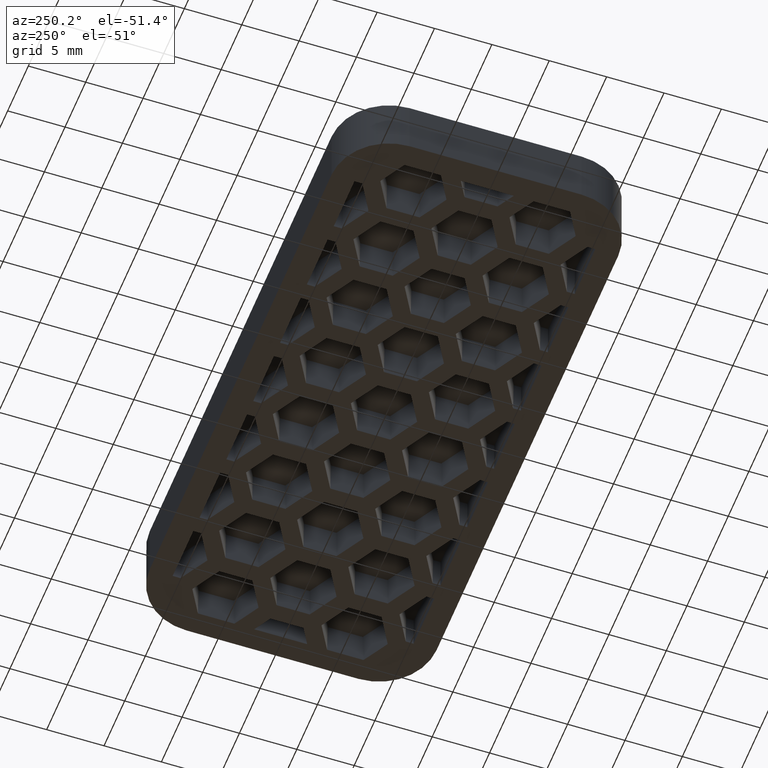
[diagram: clean part render]
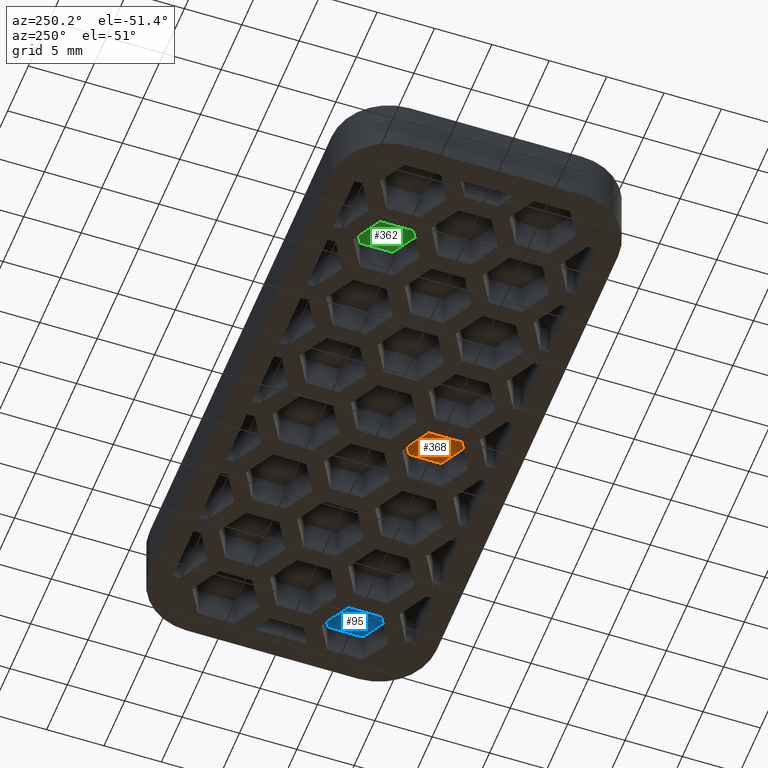
[diagram: same view with three faces highlighted in distinct colors, each labeled with its STEP entity id]
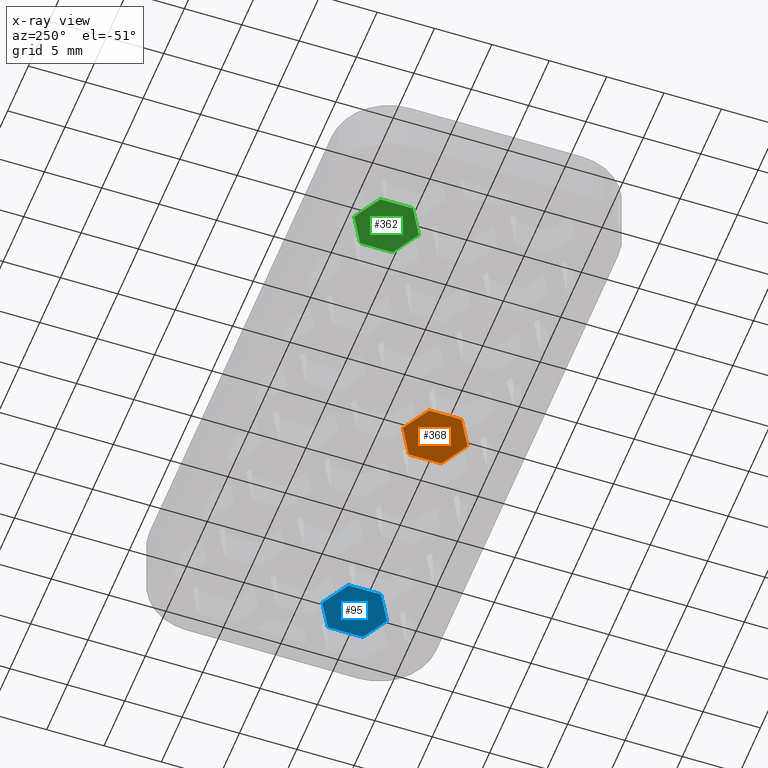
[diagram: x-ray of the same camera — body ghosted, the three highlighted faces saturated]
A machine part, auxiliary view with three faces highlighted in distinct colors.
The next image is the same camera in x-ray (body ghosted, the three faces saturated) — at least one of them is partly hidden behind the body in this view.
Their STEP definitions:

[orange] entity #368 — the highlighted planar face has unit normal (0, -0, -1).
#368 = ADVANCED_FACE( '', ( #1012 ), #1013, .T. );
#1012 = FACE_OUTER_BOUND( '', #1664, .T. );
#1013 = PLANE( '', #1665 );
#1664 = EDGE_LOOP( '', ( #4027, #4028, #4029, #4030, #4031, #4032 ) );
#1665 = AXIS2_PLACEMENT_3D( '', #4033, #4034, #4035 );
#4027 = ORIENTED_EDGE( '', *, *, #4536, .T. );
#4028 = ORIENTED_EDGE( '', *, *, #4524, .T. );
#4029 = ORIENTED_EDGE( '', *, *, #4529, .T. );
#4030 = ORIENTED_EDGE( '', *, *, #4531, .T. );
#4031 = ORIENTED_EDGE( '', *, *, #4533, .T. );
#4032 = ORIENTED_EDGE( '', *, *, #4535, .T. );
#4033 = CARTESIAN_POINT( '', ( 39.5000000000000, -3.28575599888026E-015, 3.00000000000000 ) );
#4034 = DIRECTION( '', ( 0.000000000000000, -6.12303176911189E-017, -1.00000000000000 ) );
#4035 = DIRECTION( '', ( 0.000000000000000, -1.00000000000000, 6.12303176911189E-017 ) );
#4524 = EDGE_CURVE( '', #5625, #5627, #5629, .T. );
#4529 = EDGE_CURVE( '', #5627, #5633, #5635, .T. );
#4531 = EDGE_CURVE( '', #5633, #5636, #5638, .T. );
#4533 = EDGE_CURVE( '', #5636, #5639, #5641, .T. );
#4535 = EDGE_CURVE( '', #5639, #5642, #5644, .T. );
#4536 = EDGE_CURVE( '', #5642, #5625, #5645, .T. );
#5625 = VERTEX_POINT( '', #7293 );
#5627 = VERTEX_POINT( '', #7296 );
#5629 = LINE( '', #7299, #7300 );
#5633 = VERTEX_POINT( '', #7307 );
#5635 = LINE( '', #7310, #7311 );
#5636 = VERTEX_POINT( '', #7312 );
#5638 = LINE( '', #7315, #7316 );
#5639 = VERTEX_POINT( '', #7317 );
#5641 = LINE( '', #7320, #7321 );
#5642 = VERTEX_POINT( '', #7322 );
#5644 = LINE( '', #7325, #7326 );
#5645 = LINE( '', #7327, #7328 );
#7293 = CARTESIAN_POINT( '', ( 5.69763480521534, -4.21602251092988, 3.00000000000000 ) );
#7296 = CARTESIAN_POINT( '', ( 5.69763480521535, -7.04230773826783, 3.00000000000000 ) );
#7299 = CARTESIAN_POINT( '', ( 5.69763480521533, 10.5000000000000, 3.00000000000000 ) );
#7300 = VECTOR( '', #8592, 1000.00000000000 );
#7307 = CARTESIAN_POINT( '', ( 3.24999999999999, -8.45545035193680, 3.00000000000000 ) );
#7310 = CARTESIAN_POINT( '', ( -11.2295492275240, -16.8152219961922, 3.00000000000000 ) );
#7311 = VECTOR( '', #8597, 1000.00000000000 );
#7312 = CARTESIAN_POINT( '', ( 0.802365194784648, -7.04230773826783, 3.00000000000000 ) );
#7315 = CARTESIAN_POINT( '', ( -27.6454507724760, 9.38204646828704, 3.00000000000000 ) );
#7316 = VECTOR( '', #8599, 1000.00000000000 );
#7317 = CARTESIAN_POINT( '', ( 0.802365194784647, -4.21602251092988, 3.00000000000000 ) );
#7320 = CARTESIAN_POINT( '', ( 0.802365194784650, 10.5000000000000, 3.00000000000000 ) );
#7321 = VECTOR( '', #8601, 1000.00000000000 );
#7322 = CARTESIAN_POINT( '', ( 3.25000000000000, -2.80287989726090, 3.00000000000000 ) );
#7325 = CARTESIAN_POINT( '', ( -13.6771840327394, -12.5757941551853, 3.00000000000000 ) );
#7326 = VECTOR( '', #8603, 1000.00000000000 );
#7327 = CARTESIAN_POINT( '', ( -25.1978159672606, 13.6214743092940, 3.00000000000000 ) );
#7328 = VECTOR( '', #8604, 1000.00000000000 );
#8592 = DIRECTION( '', ( 7.21644966006352E-016, -1.00000000000000, 6.12303176911189E-017 ) );
#8597 = DIRECTION( '', ( -0.866025403784438, -0.500000000000000, 3.06151588455594E-017 ) );
#8599 = DIRECTION( '', ( -0.866025403784439, 0.500000000000000, -3.06151588455594E-017 ) );
#8601 = DIRECTION( '', ( 1.11022302462516E-016, 1.00000000000000, -6.12303176911189E-017 ) );
#8603 = DIRECTION( '', ( 0.866025403784439, 0.500000000000000, -3.06151588455594E-017 ) );
#8604 = DIRECTION( '', ( 0.866025403784439, -0.500000000000000, 3.06151588455594E-017 ) );

[blue] entity #95 — the highlighted planar face has unit normal (0, -0, -1).
#95 = ADVANCED_FACE( '', ( #464 ), #465, .T. );
#464 = FACE_OUTER_BOUND( '', #1116, .T. );
#465 = PLANE( '', #1117 );
#1116 = EDGE_LOOP( '', ( #2077, #2078, #2079, #2080, #2081, #2082 ) );
#1117 = AXIS2_PLACEMENT_3D( '', #2083, #2084, #2085 );
#2077 = ORIENTED_EDGE( '', *, *, #4402, .T. );
#2078 = ORIENTED_EDGE( '', *, *, #4403, .T. );
#2079 = ORIENTED_EDGE( '', *, *, #4404, .T. );
#2080 = ORIENTED_EDGE( '', *, *, #4405, .T. );
#2081 = ORIENTED_EDGE( '', *, *, #4406, .T. );
#2082 = ORIENTED_EDGE( '', *, *, #4407, .T. );
#2083 = CARTESIAN_POINT( '', ( 39.5000000000000, -3.28575599888026E-015, 3.00000000000000 ) );
#2084 = DIRECTION( '', ( 0.000000000000000, -6.12303176911189E-017, -1.00000000000000 ) );
#2085 = DIRECTION( '', ( 0.000000000000000, -1.00000000000000, 6.12303176911189E-017 ) );
#4402 = EDGE_CURVE( '', #5438, #5439, #5440, .T. );
#4403 = EDGE_CURVE( '', #5439, #5441, #5442, .T. );
#4404 = EDGE_CURVE( '', #5441, #5443, #5444, .T. );
#4405 = EDGE_CURVE( '', #5443, #5445, #5446, .T. );
#4406 = EDGE_CURVE( '', #5445, #5447, #5448, .T. );
#4407 = EDGE_CURVE( '', #5447, #5438, #5449, .T. );
#5438 = VERTEX_POINT( '', #6988 );
#5439 = VERTEX_POINT( '', #6989 );
#5440 = LINE( '', #6990, #6991 );
#5441 = VERTEX_POINT( '', #6992 );
#5442 = LINE( '', #6993, #6994 );
#5443 = VERTEX_POINT( '', #6995 );
#5444 = LINE( '', #6996, #6997 );
#5445 = VERTEX_POINT( '', #6998 );
#5446 = LINE( '', #6999, #7000 );
#5447 = VERTEX_POINT( '', #7001 );
#5448 = LINE( '', #7002, #7003 );
#5449 = LINE( '', #7004, #7005 );
#6988 = CARTESIAN_POINT( '', ( 22.7500000000000, -2.80287989726089, 3.00000000000000 ) );
#6989 = CARTESIAN_POINT( '', ( 25.0000000000000, -4.10191800293754, 3.00000000000000 ) );
#6990 = CARTESIAN_POINT( '', ( -20.3228159672606, 22.0652219961922, 3.00000000000000 ) );
#6991 = VECTOR( '', #8466, 1000.00000000000 );
#6992 = CARTESIAN_POINT( '', ( 25.0000000000000, -7.15641224626016, 3.00000000000000 ) );
#6993 = CARTESIAN_POINT( '', ( 25.0000000000000, -3.28575599888025E-015, 3.00000000000000 ) );
#6994 = VECTOR( '', #8467, 1000.00000000000 );
#6995 = CARTESIAN_POINT( '', ( 22.7500000000000, -8.45545035193681, 3.00000000000000 ) );
#6996 = CARTESIAN_POINT( '', ( -6.35454922752402, -25.2589696830905, 3.00000000000000 ) );
#6997 = VECTOR( '', #8468, 1000.00000000000 );
#6998 = CARTESIAN_POINT( '', ( 20.3023651947846, -7.04230773826783, 3.00000000000000 ) );
#6999 = CARTESIAN_POINT( '', ( -22.7704507724760, 17.8257941551853, 3.00000000000000 ) );
#7000 = VECTOR( '', #8469, 1000.00000000000 );
#7001 = CARTESIAN_POINT( '', ( 20.3023651947846, -4.21602251092988, 3.00000000000000 ) );
#7002 = CARTESIAN_POINT( '', ( 20.3023651947846, 10.5000000000000, 3.00000000000000 ) );
#7003 = VECTOR( '', #8470, 1000.00000000000 );
#7004 = CARTESIAN_POINT( '', ( -8.80218403273938, -21.0195418420836, 3.00000000000000 ) );
#7005 = VECTOR( '', #8471, 1000.00000000000 );
#8466 = DIRECTION( '', ( 0.866025403784439, -0.500000000000000, 3.06151588455594E-017 ) );
#8467 = DIRECTION( '', ( -3.94430452610506E-031, -1.00000000000000, 6.12303176911189E-017 ) );
#8468 = DIRECTION( '', ( -0.866025403784438, -0.500000000000000, 3.06151588455594E-017 ) );
#8469 = DIRECTION( '', ( -0.866025403784439, 0.500000000000000, -3.06151588455594E-017 ) );
#8470 = DIRECTION( '', ( 1.11022302462516E-016, 1.00000000000000, -6.12303176911189E-017 ) );
#8471 = DIRECTION( '', ( 0.866025403784439, 0.500000000000000, -3.06151588455594E-017 ) );

[green] entity #362 — the highlighted planar face has unit normal (0, -0, -1).
#362 = ADVANCED_FACE( '', ( #1000 ), #1001, .T. );
#1000 = FACE_OUTER_BOUND( '', #1652, .T. );
#1001 = PLANE( '', #1653 );
#1652 = EDGE_LOOP( '', ( #3973, #3974, #3975, #3976, #3977, #3978 ) );
#1653 = AXIS2_PLACEMENT_3D( '', #3979, #3980, #3981 );
#3973 = ORIENTED_EDGE( '', *, *, #4621, .F. );
#3974 = ORIENTED_EDGE( '', *, *, #4629, .F. );
#3975 = ORIENTED_EDGE( '', *, *, #4640, .F. );
#3976 = ORIENTED_EDGE( '', *, *, #4638, .F. );
#3977 = ORIENTED_EDGE( '', *, *, #4636, .F. );
#3978 = ORIENTED_EDGE( '', *, *, #4631, .F. );
#3979 = CARTESIAN_POINT( '', ( 39.5000000000000, -3.28575599888026E-015, 3.00000000000000 ) );
#3980 = DIRECTION( '', ( 0.000000000000000, -6.12303176911189E-017, -1.00000000000000 ) );
#3981 = DIRECTION( '', ( 0.000000000000000, -1.00000000000000, 6.12303176911189E-017 ) );
#4621 = EDGE_CURVE( '', #5771, #5772, #5773, .F. );
#4629 = EDGE_CURVE( '', #5784, #5771, #5785, .F. );
#4631 = EDGE_CURVE( '', #5772, #5787, #5788, .F. );
#4636 = EDGE_CURVE( '', #5787, #5795, #5796, .F. );
#4638 = EDGE_CURVE( '', #5795, #5798, #5799, .F. );
#4640 = EDGE_CURVE( '', #5798, #5784, #5801, .F. );
#5771 = VERTEX_POINT( '', #7538 );
#5772 = VERTEX_POINT( '', #7539 );
#5773 = LINE( '', #7540, #7541 );
#5784 = VERTEX_POINT( '', #7559 );
#5785 = LINE( '', #7560, #7561 );
#5787 = VERTEX_POINT( '', #7564 );
#5788 = LINE( '', #7565, #7566 );
#5795 = VERTEX_POINT( '', #7577 );
#5796 = LINE( '', #7578, #7579 );
#5798 = VERTEX_POINT( '', #7582 );
#5799 = LINE( '', #7583, #7584 );
#5801 = LINE( '', #7587, #7588 );
#7538 = CARTESIAN_POINT( '', ( -13.8023651947847, 4.21602251092988, 3.00000000000000 ) );
#7539 = CARTESIAN_POINT( '', ( -13.8023651947847, 7.04230773826783, 3.00000000000000 ) );
#7540 = CARTESIAN_POINT( '', ( -13.8023651947847, 10.5000000000000, 3.00000000000000 ) );
#7541 = VECTOR( '', #8689, 1000.00000000000 );
#7559 = CARTESIAN_POINT( '', ( -16.2500000000000, 2.80287989726089, 3.00000000000000 ) );
#7560 = CARTESIAN_POINT( '', ( -20.9795492275240, 0.0722733776043155, 3.00000000000000 ) );
#7561 = VECTOR( '', #8697, 1000.00000000000 );
#7564 = CARTESIAN_POINT( '', ( -16.2500000000000, 8.45545035193681, 3.00000000000000 ) );
#7565 = CARTESIAN_POINT( '', ( -25.1978159672606, 13.6214743092940, 3.00000000000000 ) );
#7566 = VECTOR( '', #8699, 1000.00000000000 );
#7577 = CARTESIAN_POINT( '', ( -18.6976348052154, 7.04230773826783, 3.00000000000000 ) );
#7578 = CARTESIAN_POINT( '', ( -23.4271840327394, 4.31170121861124, 3.00000000000000 ) );
#7579 = VECTOR( '', #8704, 1000.00000000000 );
#7582 = CARTESIAN_POINT( '', ( -18.6976348052154, 4.21602251092987, 3.00000000000000 ) );
#7583 = CARTESIAN_POINT( '', ( -18.6976348052154, 10.5000000000000, 3.00000000000000 ) );
#7584 = VECTOR( '', #8706, 1000.00000000000 );
#7587 = CARTESIAN_POINT( '', ( -27.6454507724760, 9.38204646828702, 3.00000000000000 ) );
#7588 = VECTOR( '', #8708, 1000.00000000000 );
#8689 = DIRECTION( '', ( -4.44089209850063E-016, -1.00000000000000, 6.12303176911189E-017 ) );
#8697 = DIRECTION( '', ( -0.866025403784439, -0.500000000000000, 3.06151588455594E-017 ) );
#8699 = DIRECTION( '', ( 0.866025403784439, -0.500000000000000, 3.06151588455594E-017 ) );
#8704 = DIRECTION( '', ( 0.866025403784438, 0.500000000000000, -3.06151588455595E-017 ) );
#8706 = DIRECTION( '', ( -2.77555756156289E-016, 1.00000000000000, -6.12303176911189E-017 ) );
#8708 = DIRECTION( '', ( -0.866025403784439, 0.500000000000000, -3.06151588455594E-017 ) );